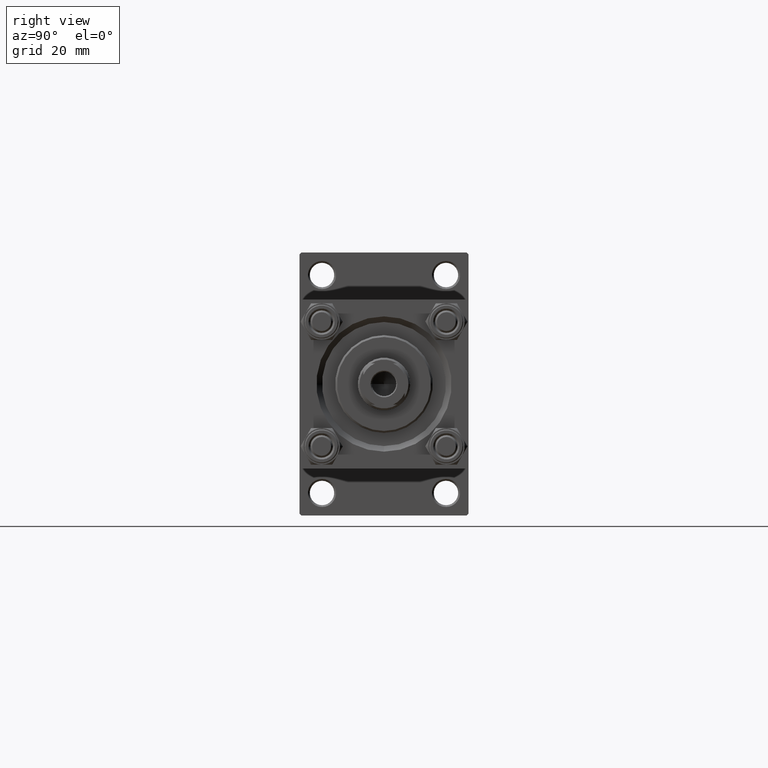
[diagram: clean part render]
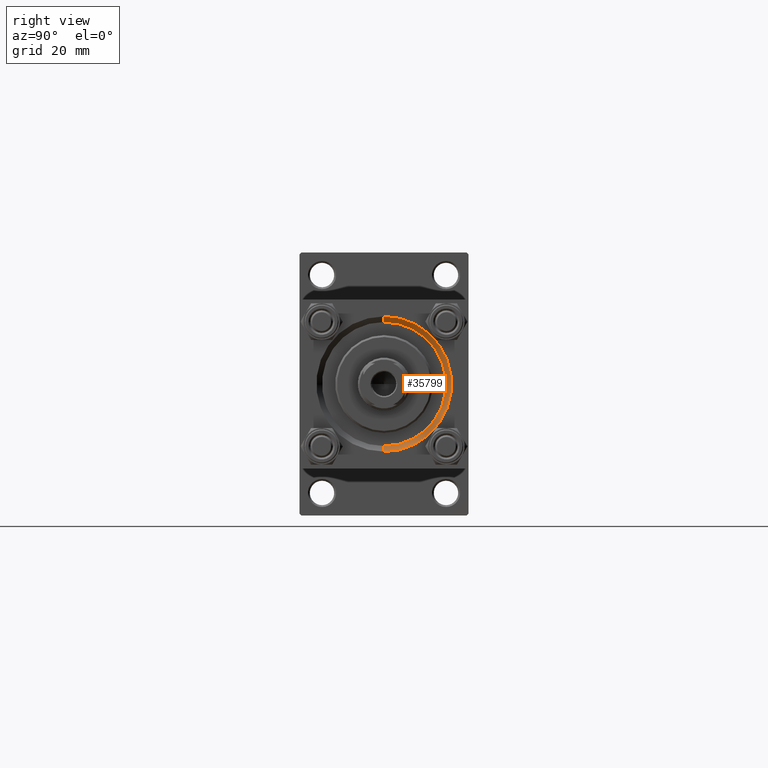
[diagram: same view with one face highlighted and labeled with its STEP entity id]
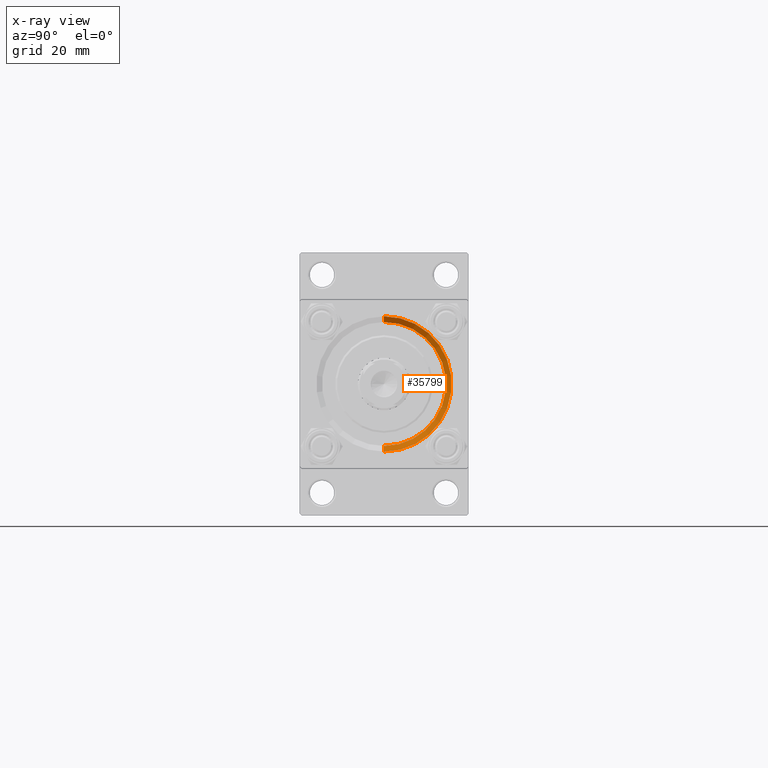
[diagram: x-ray of the same camera — body ghosted, the highlighted face saturated]
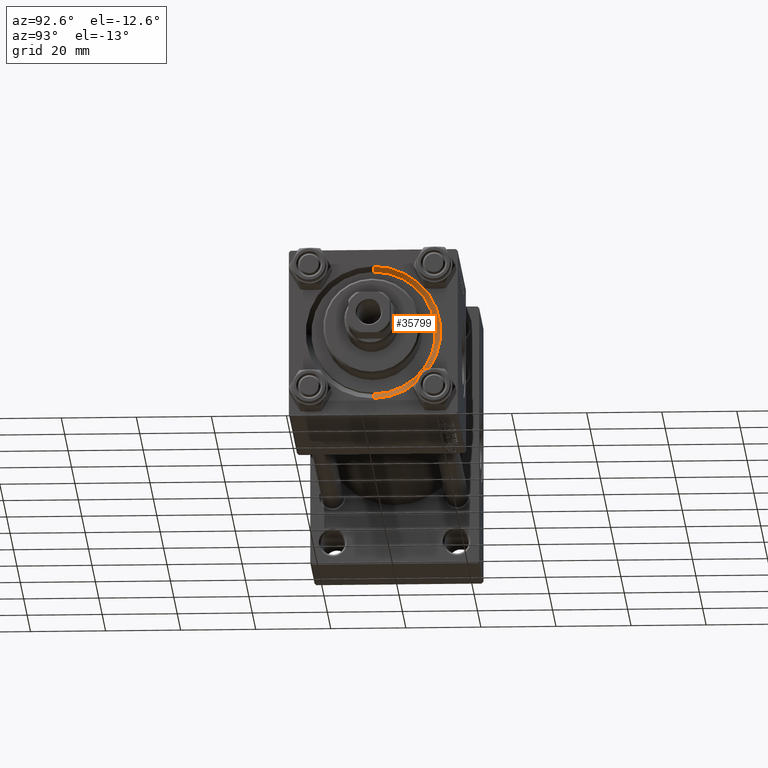
[diagram: same view with one face highlighted and labeled with its STEP entity id]
A machine part, right view. The second image highlights one B-rep face of the part: STEP entity #35799.
The next image is the same camera in x-ray: the body ghosted, the highlighted face saturated — about 0% of this face is hidden behind the body in this view.
A second angle (auxiliary view) of the same face is appended — the face is thin or edge-on in the first view.
In plain terms, the highlighted conical surface has half-angle 45 deg.
Its self-contained STEP definition (entity closure, byte-faithful):
#63 = DIRECTION ( 'NONE',  ( 0.7071067811865507924, 0.000000000000000000, -0.7071067811865441310 ) ) ;
#2189 = ORIENTED_EDGE ( 'NONE', *, *, #6217, .T. ) ;
#5915 = CARTESIAN_POINT ( 'NONE',  ( 149.5000000000000284, 0.000000000000000000, -16.50000000000000000 ) ) ;
#6016 = CARTESIAN_POINT ( 'NONE',  ( 151.0000000000000284, 0.000000000000000000, 0.000000000000000000 ) ) ;
#6083 = VERTEX_POINT ( 'NONE', #29229 ) ;
#6217 = EDGE_CURVE ( 'NONE', #37819, #6083, #19014, .T. ) ;
#7121 = CARTESIAN_POINT ( 'NONE',  ( 149.5000000000000284, 2.020667218593133100E-15, 16.50000000000000000 ) ) ;
#8727 = ORIENTED_EDGE ( 'NONE', *, *, #14274, .F. ) ;
#9056 = DIRECTION ( 'NONE',  ( 0.000000000000000000, 0.000000000000000000, 1.000000000000000000 ) ) ;
#9186 = CIRCLE ( 'NONE', #20477, 16.50000000000000000 ) ;
#9861 = VERTEX_POINT ( 'NONE', #28384 ) ;
#12479 = EDGE_LOOP ( 'NONE', ( #8727, #32361, #2189, #33025 ) ) ;
#14274 = EDGE_CURVE ( 'NONE', #27139, #9861, #18996, .T. ) ;
#14463 = DIRECTION ( 'NONE',  ( 0.7071067811865507924, 8.659560562354892183E-17, 0.7071067811865441310 ) ) ;
#15260 = CARTESIAN_POINT ( 'NONE',  ( 149.5000000000000284, 0.000000000000000000, 0.000000000000000000 ) ) ;
#15976 = EDGE_CURVE ( 'NONE', #9861, #6083, #29788, .T. ) ;
#18532 = CARTESIAN_POINT ( 'NONE',  ( 149.5000000000000284, 0.000000000000000000, 0.000000000000000000 ) ) ;
#18996 = LINE ( 'NONE', #7121, #38625 ) ;
#19014 = LINE ( 'NONE', #41510, #35026 ) ;
#19534 = FACE_OUTER_BOUND ( 'NONE', #12479, .T. ) ;
#20477 = AXIS2_PLACEMENT_3D ( 'NONE', #18532, #49121, #33942 ) ;
#27139 = VERTEX_POINT ( 'NONE', #35285 ) ;
#27222 = AXIS2_PLACEMENT_3D ( 'NONE', #15260, #45591, #49875 ) ;
#28384 = CARTESIAN_POINT ( 'NONE',  ( 151.0000000000000284, 2.204364238465234244E-15, 17.99999999999998934 ) ) ;
#29229 = CARTESIAN_POINT ( 'NONE',  ( 151.0000000000000284, 0.000000000000000000, -17.99999999999998934 ) ) ;
#29788 = CIRCLE ( 'NONE', #33829, 17.99999999999998934 ) ;
#30098 = EDGE_CURVE ( 'NONE', #37819, #27139, #9186, .T. ) ;
#32361 = ORIENTED_EDGE ( 'NONE', *, *, #30098, .F. ) ;
#33025 = ORIENTED_EDGE ( 'NONE', *, *, #15976, .F. ) ;
#33829 = AXIS2_PLACEMENT_3D ( 'NONE', #6016, #44427, #9056 ) ;
#33942 = DIRECTION ( 'NONE',  ( 0.000000000000000000, 0.000000000000000000, 1.000000000000000000 ) ) ;
#35026 = VECTOR ( 'NONE', #63, 1000.000000000000114 ) ;
#35285 = CARTESIAN_POINT ( 'NONE',  ( 149.5000000000000284, 2.020667218593133100E-15, 16.50000000000000000 ) ) ;
#35799 = ADVANCED_FACE ( 'NONE', ( #19534 ), #36072, .F. ) ;
#36072 = CONICAL_SURFACE ( 'NONE', #27222, 16.50000000000000000, 0.7853981633974437271 ) ;
#37819 = VERTEX_POINT ( 'NONE', #5915 ) ;
#38625 = VECTOR ( 'NONE', #14463, 1000.000000000000114 ) ;
#41510 = CARTESIAN_POINT ( 'NONE',  ( 149.5000000000000284, 0.000000000000000000, -16.50000000000000000 ) ) ;
#44427 = DIRECTION ( 'NONE',  ( -1.000000000000000000, 0.000000000000000000, -0.000000000000000000 ) ) ;
#45591 = DIRECTION ( 'NONE',  ( 1.000000000000000000, 0.000000000000000000, 0.000000000000000000 ) ) ;
#49121 = DIRECTION ( 'NONE',  ( 1.000000000000000000, 0.000000000000000000, 0.000000000000000000 ) ) ;
#49875 = DIRECTION ( 'NONE',  ( 0.000000000000000000, 0.000000000000000000, -1.000000000000000000 ) ) ;